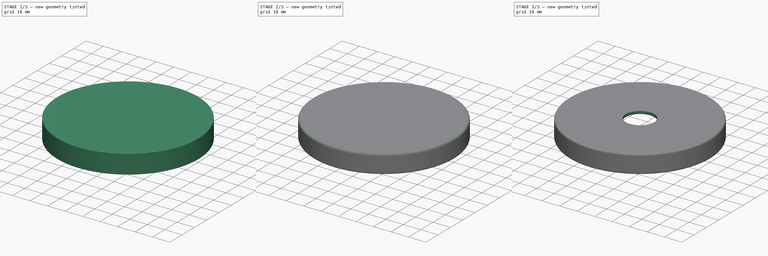
[diagram: build sequence overview — one tinted view per stage of 3, left to right]
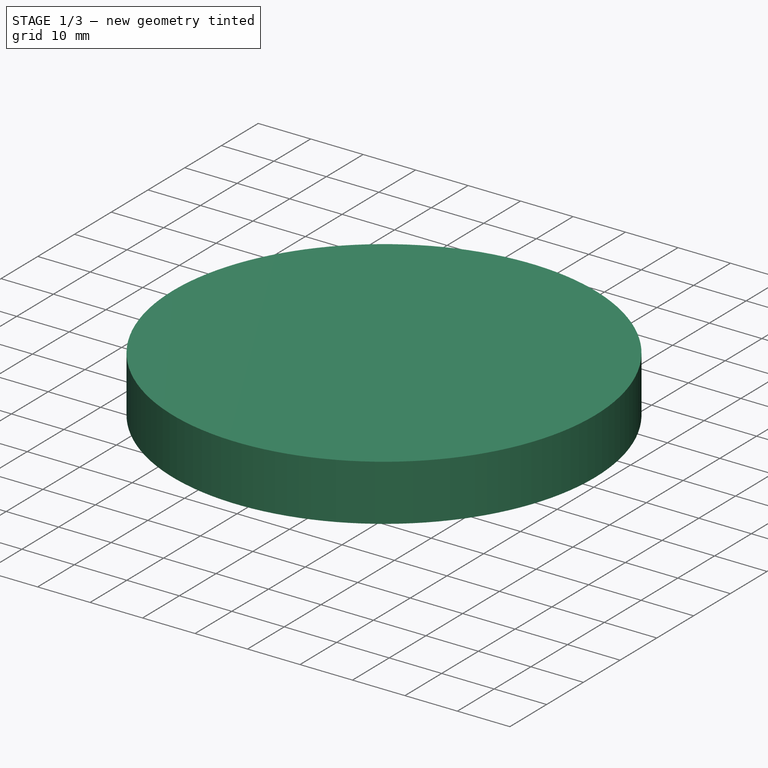
[diagram: stage 1 of 3 — iso view after this stage's code; geometry added in this stage tinted green]
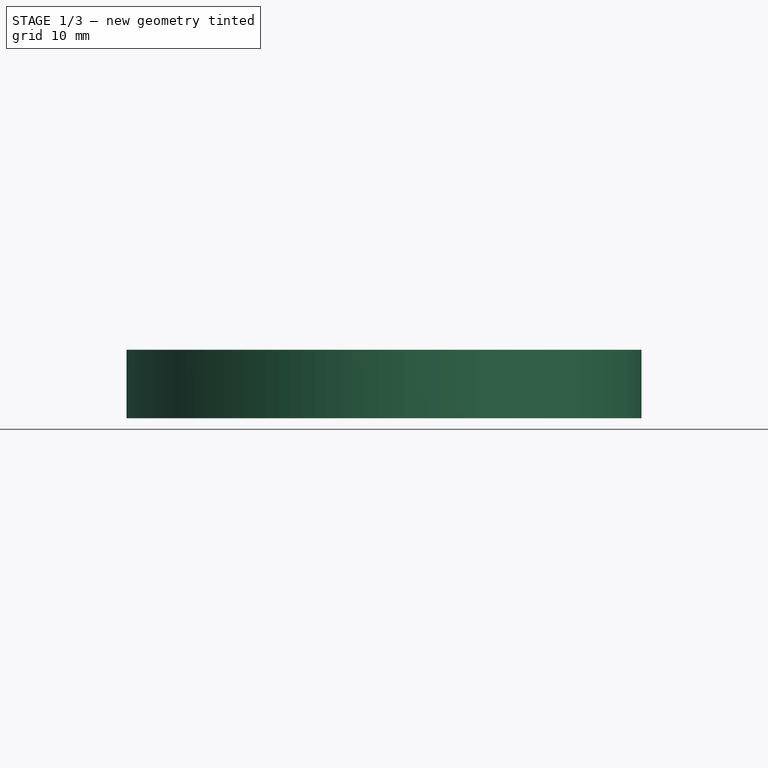
[diagram: stage 1 of 3 — front view after this stage's code; geometry added in this stage tinted green]
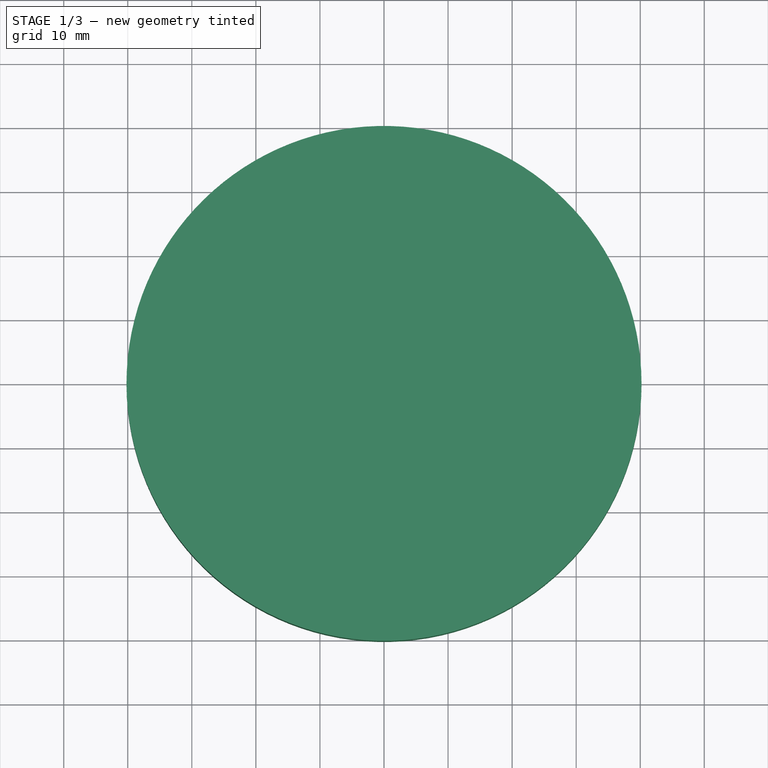
[diagram: stage 1 of 3 — top view after this stage's code; geometry added in this stage tinted green]
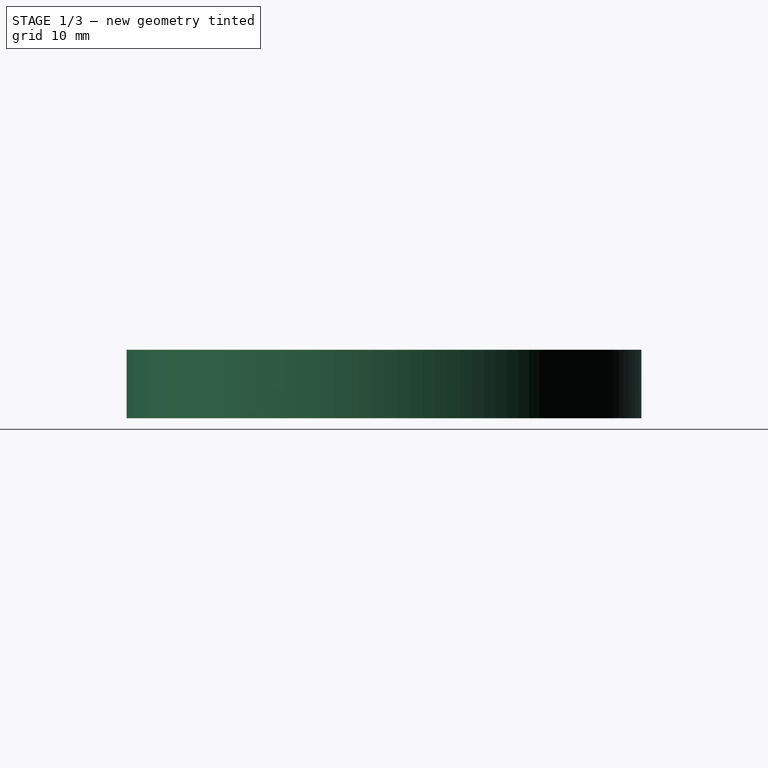
[diagram: stage 1 of 3 — right view after this stage's code; geometry added in this stage tinted green]
FCSTD DOCUMENT  (FreeCAD 1.0R39319 (Git))
Label: screw_on_lid
License: All rights reserved
LicenseURL: https://en.wikipedia.org/wiki/All_rights_reserved
objects: Sketcher::SketchObject×4, PartDesign::AdditiveHelix×3, PartDesign::Revolution×2, PartDesign::Fillet×2, Spreadsheet::Sheet×1, PartDesign::Pocket×1, PartDesign::Body×1
note: 33 computed .brp shape members not serialized (recipe doc carries the construction recipe); baked Part::Feature solids carry a one-line shape summary decoded from their .brp

FEATURE [Sketcher::SketchObject] Sketch
  ArcFitTolerance = 1e-06
  AttachmentSupport = -> [XZ_Plane001]
  FullyConstrained = true
  MakeInternals = false
  MapMode = 5
  Placement = pos=(0,0,0) rot=(1,0,0;1.5708rad)
  expr: Constraints[14] = Spreadsheet.dia / 2 + 0.2
  expr: Constraints[16] = Spreadsheet.height
  sketch-geometry (6):
    g0: LineSegment StartX=-35.2 StartY=0 StartZ=0 EndX=-35.2 EndY=8.7 EndZ=0
    g1: LineSegment StartX=-35.2 StartY=8.7 StartZ=0 EndX=0 EndY=8.7 EndZ=0
    g2: LineSegment StartX=0 StartY=8.7 StartZ=0 EndX=0 EndY=10.7 EndZ=0
    g3: LineSegment StartX=0 StartY=10.7 StartZ=0 EndX=-40.2 EndY=10.7 EndZ=0
    g4: LineSegment StartX=-40.2 StartY=10.7 StartZ=0 EndX=-40.2 EndY=0 EndZ=0
    g5: LineSegment StartX=-40.2 StartY=0 StartZ=0 EndX=-35.2 EndY=0 EndZ=0
  constraints (18):
    c: PointOnObject(g0,g-1)
    c: Vertical(g0)
    c: Coincident(g0,g1)
    c: Horizontal(g1)
    c: Coincident(g1,g2)
    c: PointOnObject(g2,g-2)
    c: Vertical(g2)
    c: Coincident(g2,g3)
    c: Horizontal(g3)
    c: Coincident(g3,g4)
    c: PointOnObject(g4,g-1)
    c: Vertical(g4)
    c: Coincident(g4,g5)
    c: Coincident(g5,g0)
    c: DistanceX(g1,g1) = 35.2
    c: DistanceX(g5,g5) = 5
    c: DistanceY(g0,g0) = 8.7
    c: DistanceY(g2,g2) = 2
FEATURE [PartDesign::Revolution] Revolution
  Angle = 360
  Angle2 = 60
  Axis = (0,2e-16,1)
  Base = (0,0,0)
  Placement = pos=(0,0,0) rot=(1,0,0;1.5708rad)
  Profile = -> Sketch
  ReferenceAxis = -> Sketch [V_Axis]
  Refine = true
  Suppressed = false
  Type = 0
FEATURE [Sketcher::SketchObject] Sketch001
  ArcFitTolerance = 1e-06
  AttachmentSupport = -> [XZ_Plane001]
  ExternalGeometry = -> [Revolution]
  FullyConstrained = true
  MakeInternals = false
  MapMode = 5
  Placement = pos=(0,0,0) rot=(1,0,0;1.5708rad)
  expr: Constraints[11] = Spreadsheet.th - 0.5
  sketch-geometry (4):
    g0: LineSegment StartX=-35.2 StartY=0.8 StartZ=0 EndX=-34.15 EndY=1.40622 EndZ=0
    g1: ArcOfCircle CenterX=-34.4 CenterY=1.83923 CenterZ=0 NormalX=0 NormalY=0 NormalZ=1 AngleXU=0 Radius=0.5 StartAngle=5.23599 EndAngle=7.33038
    g2: LineSegment StartX=-34.15 StartY=2.27224 StartZ=0 EndX=-35.2 EndY=2.87846 EndZ=0
    g3: LineSegment StartX=-35.2 StartY=2.87846 StartZ=0 EndX=-35.2 EndY=0.8 EndZ=0
  constraints (12):
    c: Tangent(g0,g1) = -1.5708
    c: Coincident(g1,g2)
    c: PointOnObject(g2,g-3)
    c: Coincident(g2,g3)
    c: Coincident(g3,g0)
    c: Equal(g2,g0)
    c: Angle(g3,g2) = 1.0472
    c: Angle(g0,g3) = 1.0472
    c: Radius(g1) = 0.5
    c: PointOnObject(g0,g-3)
    c: DistanceY(g-3,g0) = 0.8
    c: DistanceX(g0,g1) = 0.8
FEATURE [PartDesign::AdditiveHelix] AdditiveHelix
  Angle = 0
  Axis = (0,2e-16,1)
  Base = (0,0,0)
  BaseFeature = -> Revolution
  Growth = 0
  HasBeenEdited = true
  Height = 6.7
  LeftHanded = false
  Mode = 0
  Outside = false
  Pitch = 3.7
  Placement = pos=(0,0,0) rot=(1,0,0;1.5708rad)
  Profile = -> Sketch001
  ReferenceAxis = -> Sketch001 [V_Axis]
  Refine = true
  Suppressed = false
  Tolerance = 0.1
  Turns = 1.81081
  expr: Height = Spreadsheet.height - 2
  expr: Pitch = Spreadsheet.pitch
FEATURE [PartDesign::AdditiveHelix] AdditiveHelix001
  Angle = 80
  Axis = (1e-16,1e-16,1)
  Base = (0,0,0)
  BaseFeature = -> AdditiveHelix
  Growth = 20.9837
  HasBeenEdited = true
  Height = 0.37
  LeftHanded = false
  Mode = 1
  Outside = false
  Pitch = 3.7
  Placement = pos=(0,0,0) rot=(1,0,0;1.5708rad)
  Profile = -> AdditiveHelix [Face4]
  ReferenceAxis = -> Z_Axis001
  Refine = true
  Reversed = true
  Suppressed = false
  Tolerance = 0.1
  Turns = 0.1
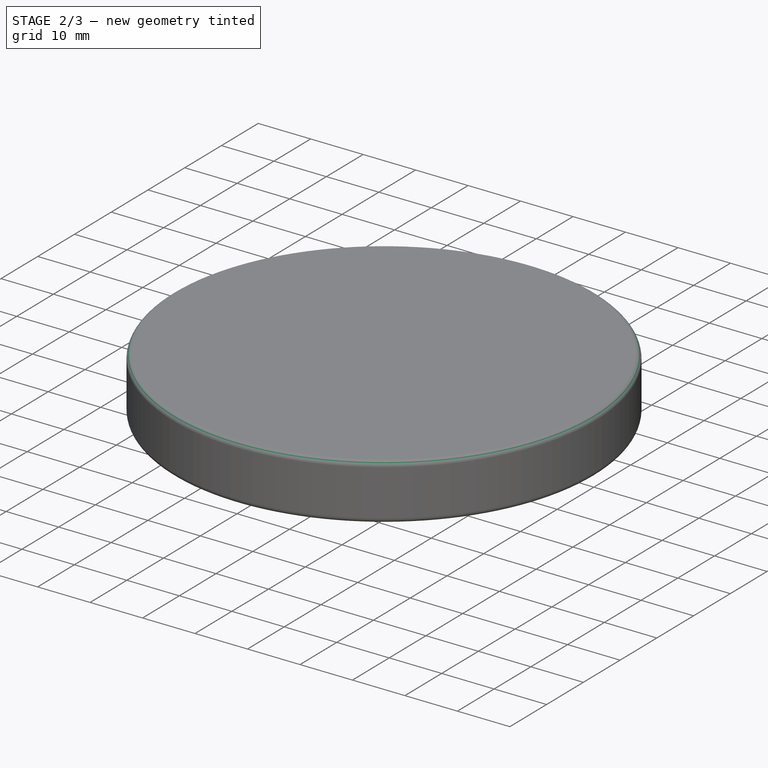
[diagram: stage 2 of 3 — iso view after this stage's code; geometry added in this stage tinted green]
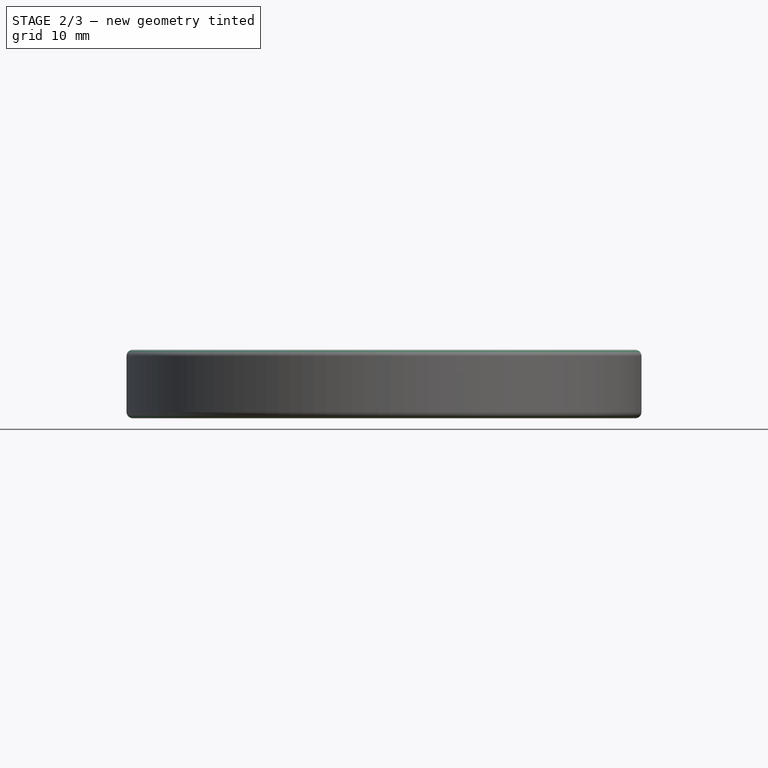
[diagram: stage 2 of 3 — front view after this stage's code; geometry added in this stage tinted green]
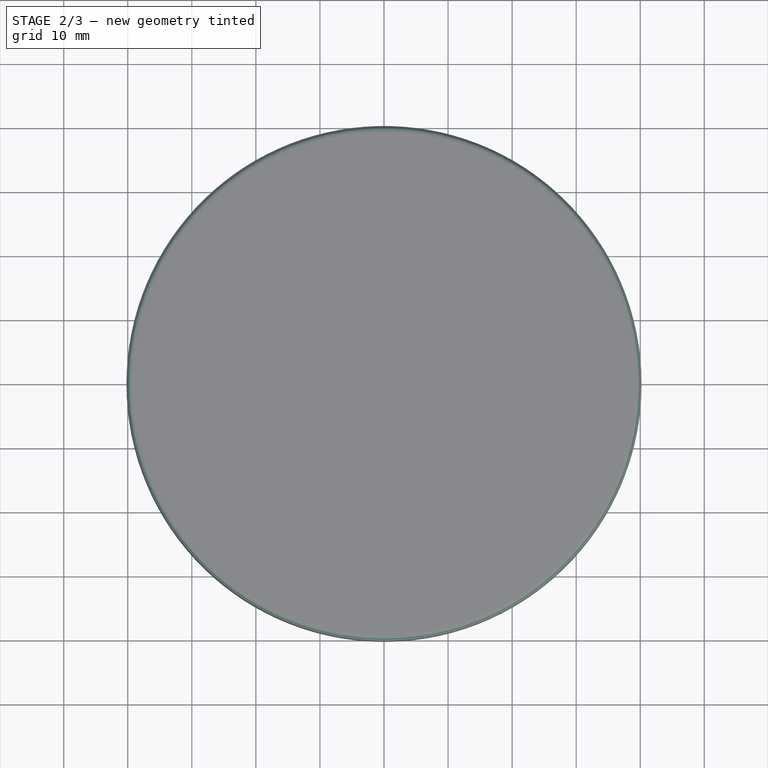
[diagram: stage 2 of 3 — top view after this stage's code; geometry added in this stage tinted green]
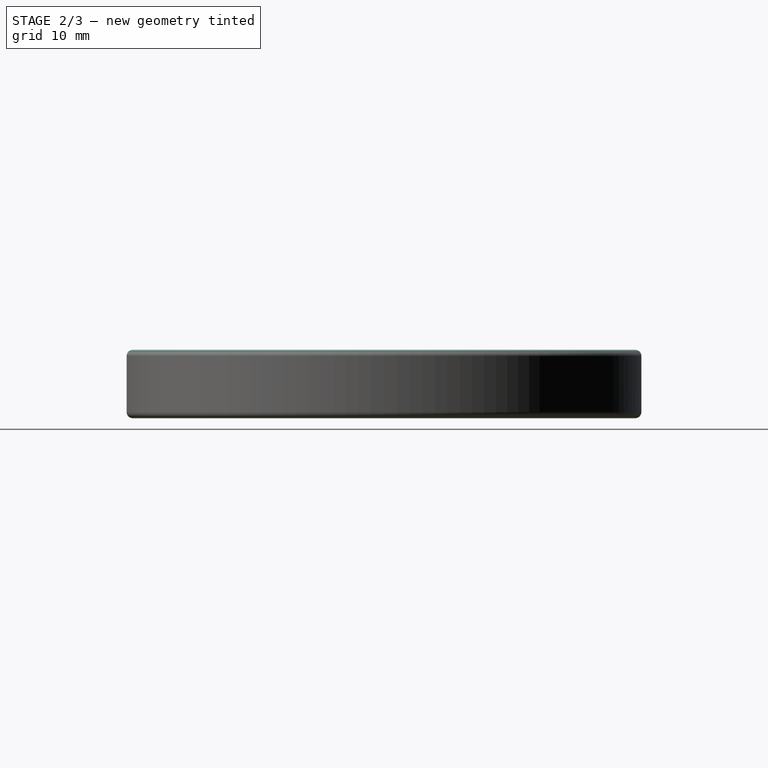
[diagram: stage 2 of 3 — right view after this stage's code; geometry added in this stage tinted green]
FEATURE [Spreadsheet::Sheet] Spreadsheet
  cells = A1='height; B1(height)=8.7; C1='height; A2='dia; B2(dia)=70; C2='internal diameter; A4='pitch; B4(pitch)=3.7; A5='th; B5(th)=1.3; C5='thread height; A8='lip; B8(lip)=59.9; C8='lip diameter
FEATURE [PartDesign::AdditiveHelix] AdditiveHelix002
  Angle = 80
  Axis = (1e-16,1e-16,1)
  Base = (0,0,0)
  BaseFeature = -> AdditiveHelix001
  Growth = 20.9837
  HasBeenEdited = true
  Height = 0.37
  LeftHanded = false
  Mode = 1
  Outside = false
  Pitch = 3.7
  Placement = pos=(0,0,0) rot=(1,0,0;1.5708rad)
  Profile = -> AdditiveHelix001 [Face11]
  ReferenceAxis = -> Z_Axis001
  Refine = true
  Suppressed = false
  Tolerance = 0.1
  Turns = 0.1
FEATURE [PartDesign::Fillet] Fillet
  Base = -> AdditiveHelix002 [Face8,Edge22]
  BaseFeature = -> AdditiveHelix002
  Placement = pos=(0,0,0) rot=(1,0,0;1.5708rad)
  Radius = 1
  Refine = true
  SupportTransform = false
  Suppressed = false
  UseAllEdges = false
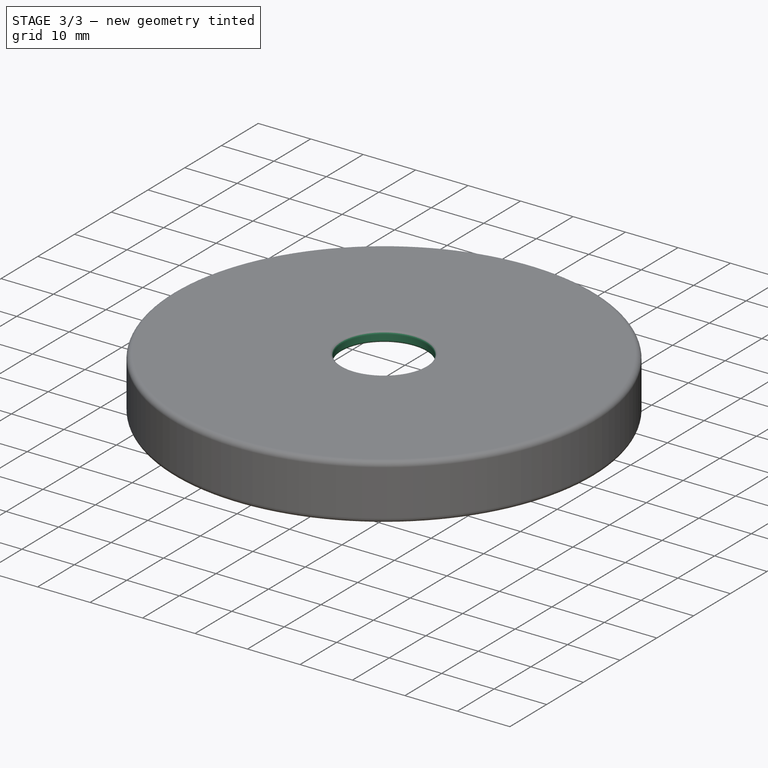
[diagram: stage 3 of 3 — iso view after this stage's code; geometry added in this stage tinted green]
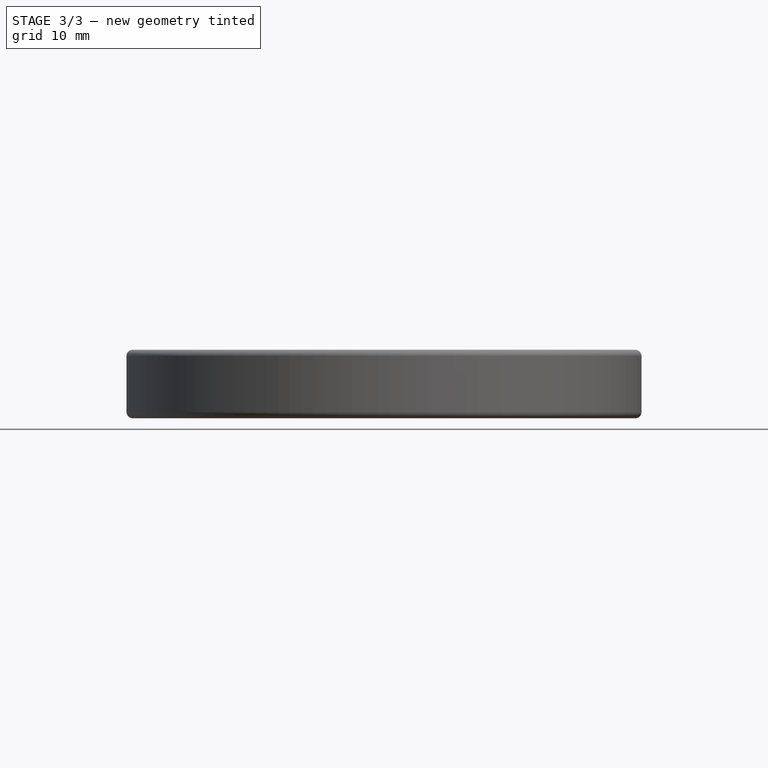
[diagram: stage 3 of 3 — front view after this stage's code; geometry added in this stage tinted green]
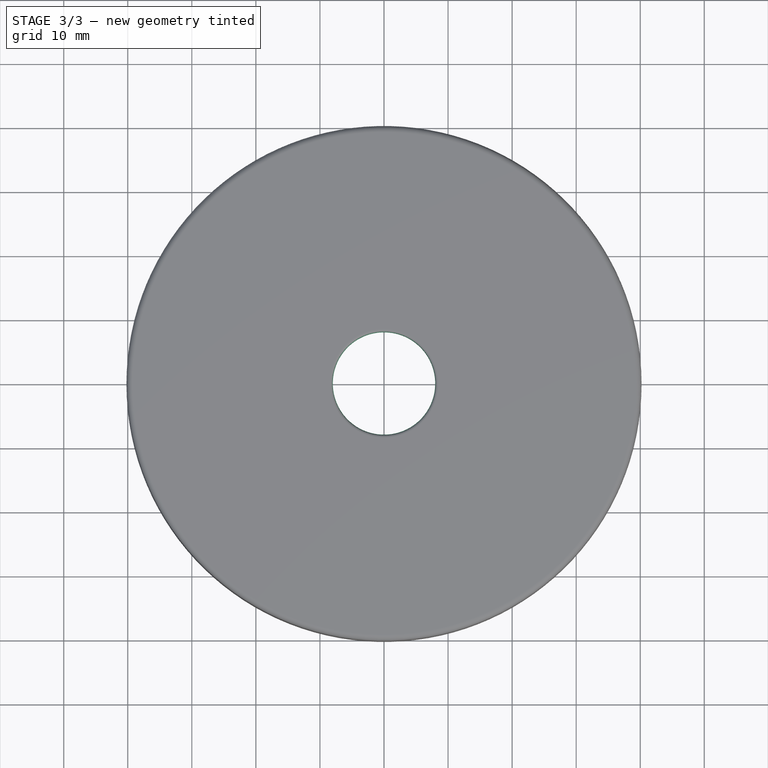
[diagram: stage 3 of 3 — top view after this stage's code; geometry added in this stage tinted green]
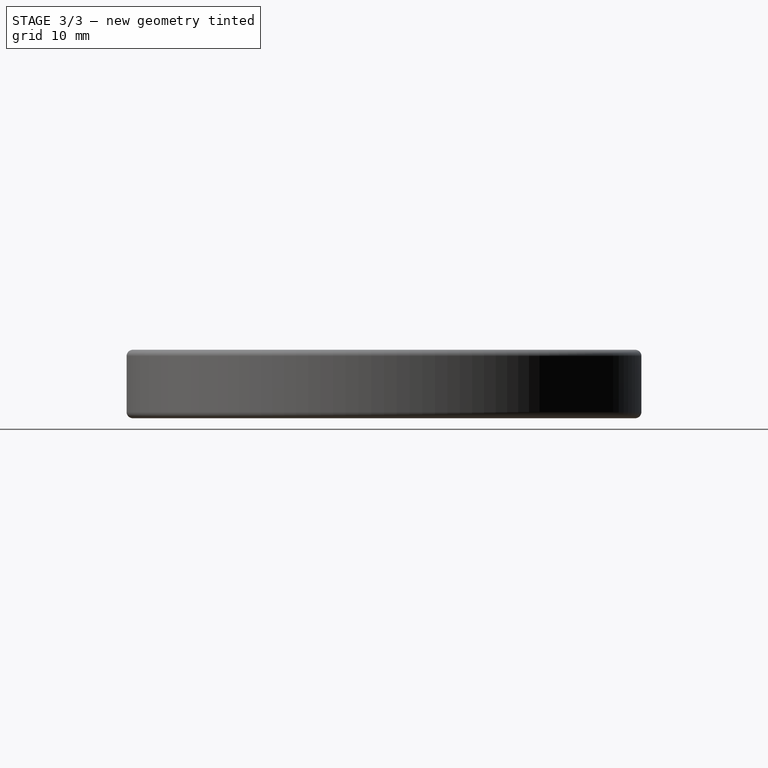
[diagram: stage 3 of 3 — right view after this stage's code; geometry added in this stage tinted green]
FEATURE [Sketcher::SketchObject] Sketch002
  ArcFitTolerance = 1e-06
  AttachmentSupport = -> [XZ_Plane001]
  FullyConstrained = true
  MakeInternals = false
  MapMode = 5
  Placement = pos=(0,0,0) rot=(1,0,0;1.5708rad)
  expr: Constraints[3] = Spreadsheet.lip / 2
  expr: Constraints[6] = Spreadsheet.height
  sketch-geometry (2):
    g0: LineSegment StartX=-29.95 StartY=8.7 StartZ=0 EndX=-27.95 EndY=8.7 EndZ=0
    g1: ArcOfCircle CenterX=-28.95 CenterY=8.7 CenterZ=0 NormalX=0 NormalY=0 NormalZ=1 AngleXU=0 Radius=1 StartAngle=3.14159 EndAngle=6.28319
  constraints (7):
    c: Horizontal(g0)
    c: Coincident(g1,g0)
    c: DistanceX(g0,g0) = 2
    c: DistanceX(g0,g-1) = 29.95
    c: Coincident(g1,g0)
    c: PointOnObject(g1,g0)
    c: DistanceY(g-1,g0) = 8.7
FEATURE [PartDesign::Revolution] Revolution001
  Angle = 360
  Angle2 = 60
  Axis = (0,2e-16,1)
  Base = (0,0,0)
  BaseFeature = -> Fillet
  Placement = pos=(0,0,0) rot=(1,0,0;1.5708rad)
  Profile = -> Sketch002
  ReferenceAxis = -> Sketch002 [V_Axis]
  Refine = true
  Suppressed = false
  Type = 0
FEATURE [Sketcher::SketchObject] Sketch003
  ArcFitTolerance = 1e-06
  AttachmentSupport = -> [Revolution001]
  FullyConstrained = true
  MakeInternals = false
  MapMode = 5
  Placement = pos=(0,2.4e-15,10.7) rot=(0,0,1;3.14159rad)
  sketch-geometry (1):
    g0: Circle CenterX=0 CenterY=0 CenterZ=0 NormalX=0 NormalY=0 NormalZ=1 AngleXU=0 Radius=8
  constraints (2):
    c: Coincident(g0,g-1)
    c: Diameter(g0) = 16
FEATURE [PartDesign::Pocket] Pocket
  BaseFeature = -> Revolution001
  Direction = (0,0,-1)
  Length = 5
  Length2 = 5
  Placement = pos=(0,0,0) rot=(1,0,0;1.5708rad)
  Profile = -> Sketch003
  ReferenceAxis = -> Sketch003 [N_Axis]
  Refine = true
  Suppressed = false
  Type = 0
FEATURE [PartDesign::Fillet] Fillet001
  Base = -> Pocket [Edge4,Edge10]
  BaseFeature = -> Pocket
  Placement = pos=(0,0,0) rot=(1,0,0;1.5708rad)
  Radius = 0.5
  Refine = true
  SupportTransform = false
  Suppressed = false
  UseAllEdges = false
FEATURE [PartDesign::Body] Body001
  AllowCompound = false
  Group = -> [Sketch,Revolution,Sketch001,AdditiveHelix,AdditiveHelix001,AdditiveHelix002,Fillet,Sketch002,Revolution001,Sketch003,Pocket,Fillet001]
  Origin = -> Origin001
  Tip = -> Fillet001
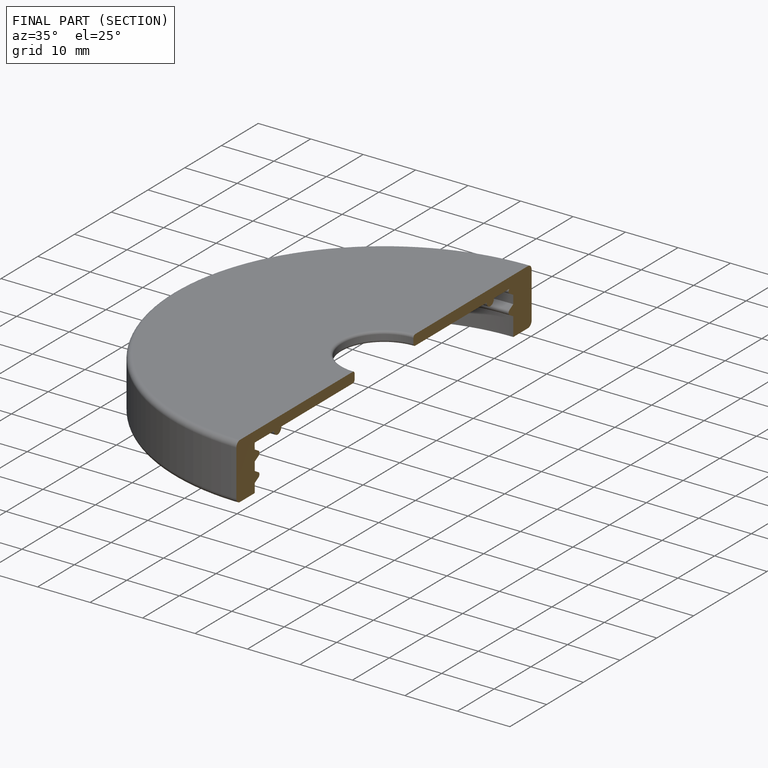
[diagram: finished part — half-section view (interior)]
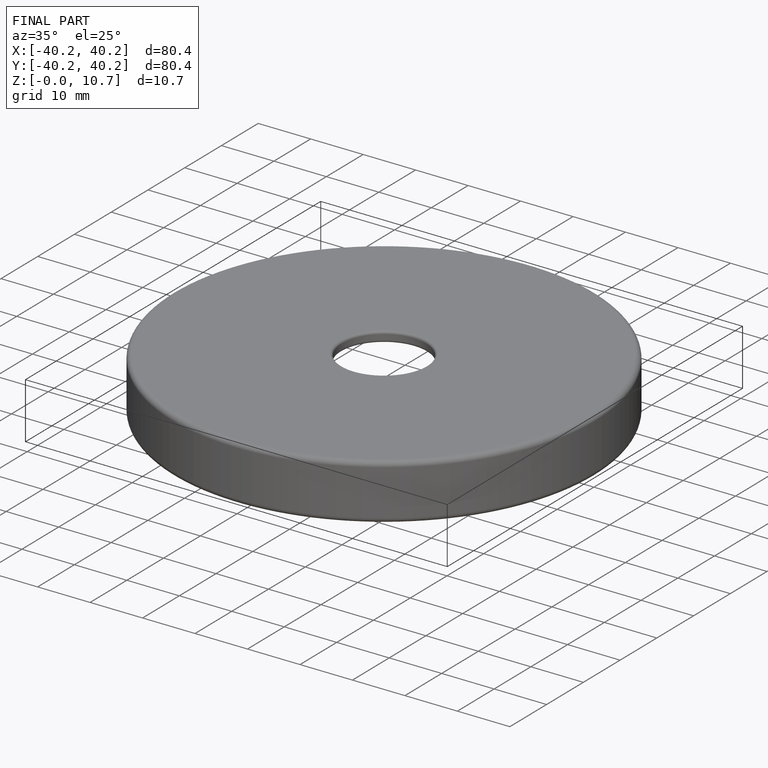
[diagram: finished part — iso view with bounding-box wireframe]
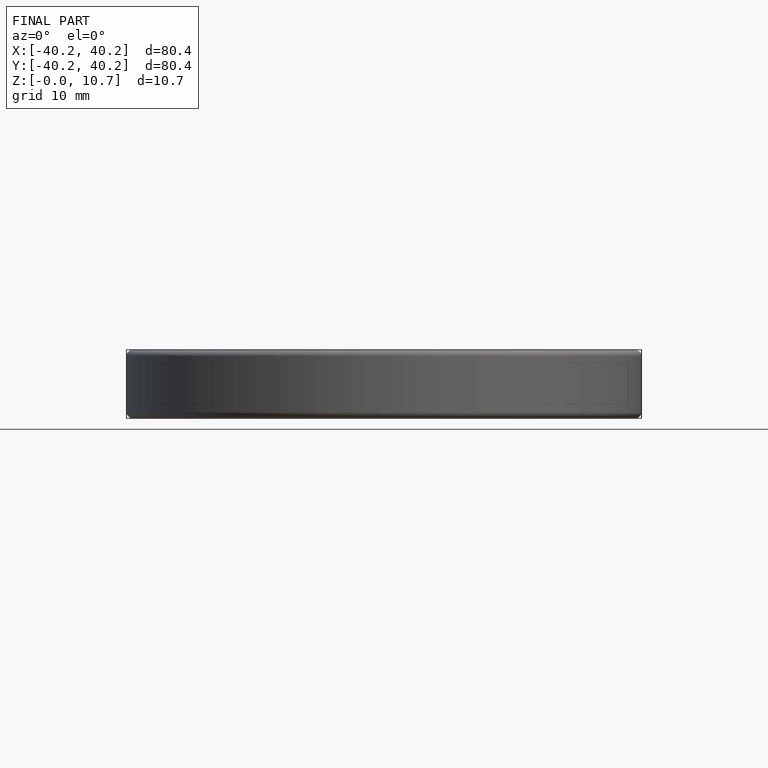
[diagram: finished part — front view with bounding-box wireframe]
